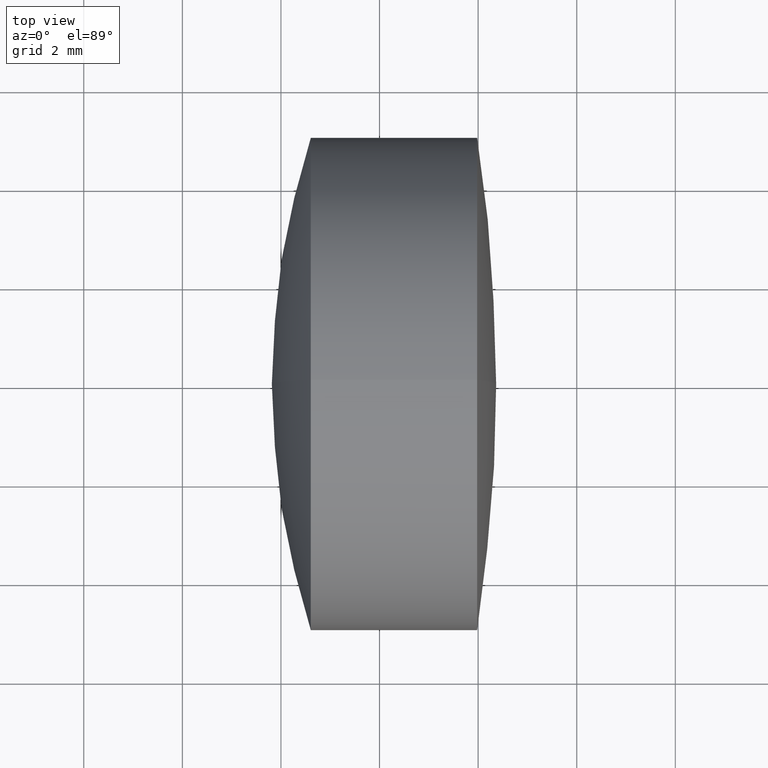
[diagram: clean part render]
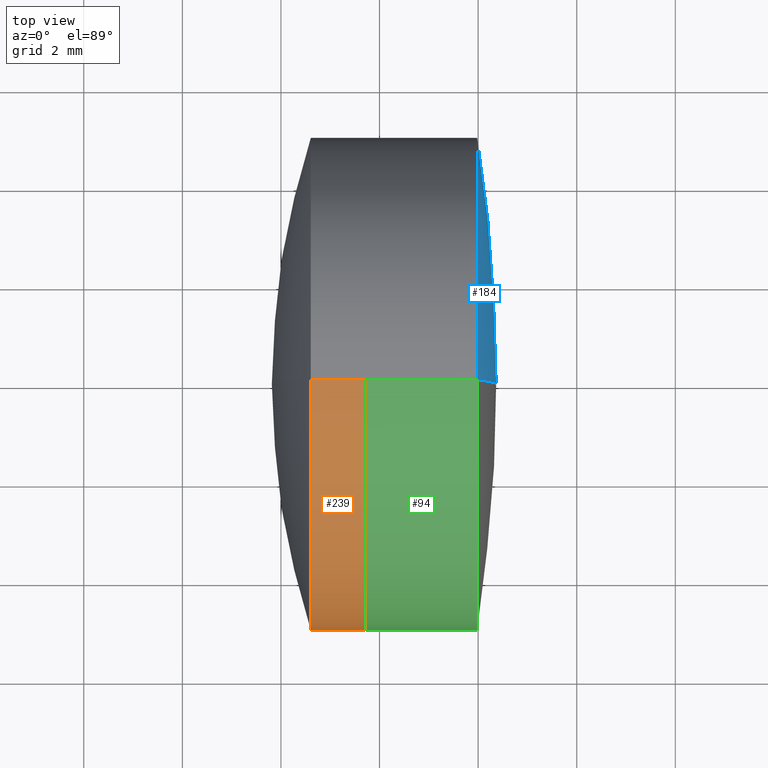
[diagram: same view with three faces highlighted in distinct colors, each labeled with its STEP entity id]
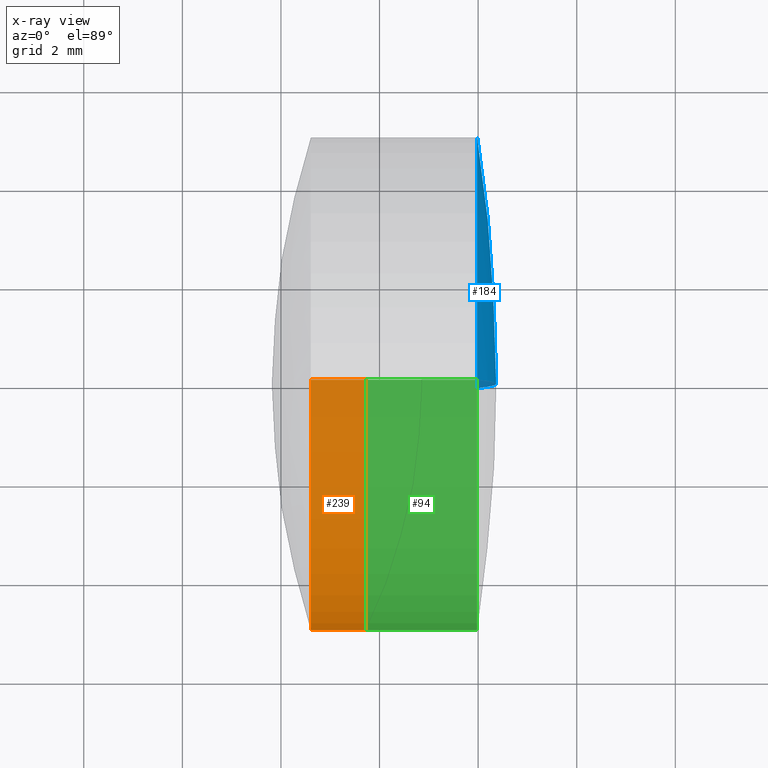
[diagram: x-ray of the same camera — body ghosted, the three highlighted faces saturated]
A machine part, top view with three faces highlighted in distinct colors.
The next image is the same camera in x-ray (body ghosted, the three faces saturated) — at least one of them is partly hidden behind the body in this view.
Their STEP definitions:

[orange] entity #239 — the highlighted cylindrical surface (partial cylindrical patch) has radius 5 mm, axis along (-1, -0, -0).
#3 = CARTESIAN_POINT ( 'NONE',  ( 2.605354894896700900, 0.0000000000000000000, 0.0000000000000000000 ) ) ;
#5 = CARTESIAN_POINT ( 'NONE',  ( 2.605354894896702700, 0.0000000000000000000, 5.000000000000002700 ) ) ;
#6 = DIRECTION ( 'NONE',  ( -1.000000000000000000, -0.0000000000000000000, -0.0000000000000000000 ) ) ;
#14 = VECTOR ( 'NONE', #209, 1000.000000000000000 ) ;
#57 = AXIS2_PLACEMENT_3D ( 'NONE', #210, #192, #303 ) ;
#59 = VERTEX_POINT ( 'NONE', #5 ) ;
#69 = AXIS2_PLACEMENT_3D ( 'NONE', #3, #6, #301 ) ;
#87 = ORIENTED_EDGE ( 'NONE', *, *, #141, .T. ) ;
#88 = CARTESIAN_POINT ( 'NONE',  ( -9.702612178336682500, 0.0000000000000000000, 5.000000000000000000 ) ) ;
#110 = ORIENTED_EDGE ( 'NONE', *, *, #116, .F. ) ;
#116 = EDGE_CURVE ( 'NONE', #318, #59, #127, .T. ) ;
#117 = DIRECTION ( 'NONE',  ( -1.000000000000000000, -0.0000000000000000000, -0.0000000000000000000 ) ) ;
#118 = ORIENTED_EDGE ( 'NONE', *, *, #213, .F. ) ;
#127 = CIRCLE ( 'NONE', #69, 5.000000000000000000 ) ;
#130 = CARTESIAN_POINT ( 'NONE',  ( -9.702612178336682500, 0.0000000000000000000, 0.0000000000000000000 ) ) ;
#141 = EDGE_CURVE ( 'NONE', #243, #305, #181, .T. ) ;
#148 = FACE_OUTER_BOUND ( 'NONE', #342, .T. ) ;
#154 = LINE ( 'NONE', #177, #275 ) ;
#159 = LINE ( 'NONE', #88, #14 ) ;
#177 = CARTESIAN_POINT ( 'NONE',  ( -9.702612178336682500, 6.123233995736766300E-016, -5.000000000000000000 ) ) ;
#181 = CIRCLE ( 'NONE', #57, 5.000000000000000000 ) ;
#182 = CARTESIAN_POINT ( 'NONE',  ( 2.605354894896702700, 6.123233995736769200E-016, -5.000000000000002700 ) ) ;
#192 = DIRECTION ( 'NONE',  ( -1.000000000000000000, -0.0000000000000000000, -0.0000000000000000000 ) ) ;
#195 = EDGE_CURVE ( 'NONE', #305, #59, #159, .T. ) ;
#209 = DIRECTION ( 'NONE',  ( -1.000000000000000000, -0.0000000000000000000, -0.0000000000000000000 ) ) ;
#210 = CARTESIAN_POINT ( 'NONE',  ( 3.722280238489432700, 0.0000000000000000000, 0.0000000000000000000 ) ) ;
#213 = EDGE_CURVE ( 'NONE', #243, #318, #154, .T. ) ;
#215 = DIRECTION ( 'NONE',  ( -1.000000000000000000, -0.0000000000000000000, -0.0000000000000000000 ) ) ;
#239 = ADVANCED_FACE ( 'NONE', ( #148 ), #281, .T. ) ;
#243 = VERTEX_POINT ( 'NONE', #330 ) ;
#271 = DIRECTION ( 'NONE',  ( 0.0000000000000000000, 0.0000000000000000000, 1.000000000000000000 ) ) ;
#275 = VECTOR ( 'NONE', #117, 1000.000000000000000 ) ;
#281 = CYLINDRICAL_SURFACE ( 'NONE', #299, 5.000000000000000000 ) ;
#297 = ORIENTED_EDGE ( 'NONE', *, *, #195, .T. ) ;
#299 = AXIS2_PLACEMENT_3D ( 'NONE', #130, #215, #271 ) ;
#301 = DIRECTION ( 'NONE',  ( 0.0000000000000000000, 0.0000000000000000000, 1.000000000000000000 ) ) ;
#303 = DIRECTION ( 'NONE',  ( 0.0000000000000000000, 0.0000000000000000000, 1.000000000000000000 ) ) ;
#305 = VERTEX_POINT ( 'NONE', #323 ) ;
#318 = VERTEX_POINT ( 'NONE', #182 ) ;
#323 = CARTESIAN_POINT ( 'NONE',  ( 3.722280238489432700, 0.0000000000000000000, 5.000000000000000000 ) ) ;
#330 = CARTESIAN_POINT ( 'NONE',  ( 3.722280238489432700, 6.123233995736766300E-016, -5.000000000000000000 ) ) ;
#342 = EDGE_LOOP ( 'NONE', ( #118, #87, #297, #110 ) ) ;

[blue] entity #184 — the highlighted spherical surface has radius 32.651 mm.
#9 = AXIS2_PLACEMENT_3D ( 'NONE', #255, #104, #235 ) ;
#16 = DIRECTION ( 'NONE',  ( 0.0000000000000000000, 1.000000000000000000, 0.0000000000000000000 ) ) ;
#19 = VERTEX_POINT ( 'NONE', #77 ) ;
#20 = VERTEX_POINT ( 'NONE', #62 ) ;
#48 = AXIS2_PLACEMENT_3D ( 'NONE', #256, #307, #329 ) ;
#62 = CARTESIAN_POINT ( 'NONE',  ( 5.980462902601981800, 6.123233995736762300E-016, -4.999999999999995600 ) ) ;
#65 = EDGE_CURVE ( 'NONE', #157, #19, #96, .T. ) ;
#77 = CARTESIAN_POINT ( 'NONE',  ( 5.980462902601981800, 0.0000000000000000000, 4.999999999999995600 ) ) ;
#86 = ORIENTED_EDGE ( 'NONE', *, *, #308, .T. ) ;
#89 = CIRCLE ( 'NONE', #252, 32.65100000000000300 ) ;
#96 = CIRCLE ( 'NONE', #48, 32.65100000000000300 ) ;
#104 = DIRECTION ( 'NONE',  ( -1.000000000000000000, -0.0000000000000000000, -0.0000000000000000000 ) ) ;
#119 = CARTESIAN_POINT ( 'NONE',  ( 6.365570678769087100, 0.0000000000000000000, 1.999297131948011600E-015 ) ) ;
#140 = CARTESIAN_POINT ( 'NONE',  ( -26.28542932123091800, 0.0000000000000000000, 0.0000000000000000000 ) ) ;
#143 = DIRECTION ( 'NONE',  ( -0.0000000000000000000, 1.000000000000000000, 1.224646799147353200E-016 ) ) ;
#157 = VERTEX_POINT ( 'NONE', #119 ) ;
#161 = EDGE_CURVE ( 'NONE', #19, #20, #286, .T. ) ;
#171 = AXIS2_PLACEMENT_3D ( 'NONE', #140, #16, #311 ) ;
#184 = ADVANCED_FACE ( 'NONE', ( #238 ), #260, .T. ) ;
#194 = ORIENTED_EDGE ( 'NONE', *, *, #161, .F. ) ;
#235 = DIRECTION ( 'NONE',  ( 0.0000000000000000000, 0.0000000000000000000, 1.000000000000000000 ) ) ;
#238 = FACE_OUTER_BOUND ( 'NONE', #264, .T. ) ;
#252 = AXIS2_PLACEMENT_3D ( 'NONE', #320, #143, #302 ) ;
#255 = CARTESIAN_POINT ( 'NONE',  ( 5.980462902601981800, 0.0000000000000000000, 0.0000000000000000000 ) ) ;
#256 = CARTESIAN_POINT ( 'NONE',  ( -26.28542932123091800, 0.0000000000000000000, 0.0000000000000000000 ) ) ;
#260 = SPHERICAL_SURFACE ( 'NONE', #171, 32.65100000000000300 ) ;
#264 = EDGE_LOOP ( 'NONE', ( #321, #86, #194 ) ) ;
#286 = CIRCLE ( 'NONE', #9, 4.999999999999995600 ) ;
#302 = DIRECTION ( 'NONE',  ( 0.0000000000000000000, -1.224646799147353200E-016, 1.000000000000000000 ) ) ;
#307 = DIRECTION ( 'NONE',  ( 0.0000000000000000000, -1.000000000000000000, 0.0000000000000000000 ) ) ;
#308 = EDGE_CURVE ( 'NONE', #157, #20, #89, .T. ) ;
#311 = DIRECTION ( 'NONE',  ( 0.0000000000000000000, 0.0000000000000000000, 1.000000000000000000 ) ) ;
#320 = CARTESIAN_POINT ( 'NONE',  ( -26.28542932123091800, 0.0000000000000000000, 0.0000000000000000000 ) ) ;
#321 = ORIENTED_EDGE ( 'NONE', *, *, #65, .F. ) ;
#329 = DIRECTION ( 'NONE',  ( 0.0000000000000000000, 0.0000000000000000000, -1.000000000000000000 ) ) ;

[green] entity #94 — the highlighted cylindrical surface (partial cylindrical patch) has radius 5 mm, axis along (-1, -0, -0).
#19 = VERTEX_POINT ( 'NONE', #77 ) ;
#20 = VERTEX_POINT ( 'NONE', #62 ) ;
#29 = VERTEX_POINT ( 'NONE', #115 ) ;
#38 = DIRECTION ( 'NONE',  ( -1.000000000000000000, -0.0000000000000000000, -0.0000000000000000000 ) ) ;
#42 = EDGE_CURVE ( 'NONE', #20, #29, #309, .T. ) ;
#52 = EDGE_LOOP ( 'NONE', ( #202, #90, #258, #111 ) ) ;
#56 = VECTOR ( 'NONE', #60, 1000.000000000000000 ) ;
#60 = DIRECTION ( 'NONE',  ( -1.000000000000000000, -0.0000000000000000000, -0.0000000000000000000 ) ) ;
#62 = CARTESIAN_POINT ( 'NONE',  ( 5.980462902601981800, 6.123233995736762300E-016, -4.999999999999995600 ) ) ;
#68 = DIRECTION ( 'NONE',  ( -1.000000000000000000, -0.0000000000000000000, -0.0000000000000000000 ) ) ;
#77 = CARTESIAN_POINT ( 'NONE',  ( 5.980462902601981800, 0.0000000000000000000, 4.999999999999995600 ) ) ;
#81 = EDGE_CURVE ( 'NONE', #19, #347, #106, .T. ) ;
#90 = ORIENTED_EDGE ( 'NONE', *, *, #234, .T. ) ;
#93 = DIRECTION ( 'NONE',  ( 0.0000000000000000000, 0.0000000000000000000, 1.000000000000000000 ) ) ;
#94 = ADVANCED_FACE ( 'NONE', ( #326 ), #268, .T. ) ;
#98 = DIRECTION ( 'NONE',  ( 0.0000000000000000000, 0.0000000000000000000, 1.000000000000000000 ) ) ;
#106 = LINE ( 'NONE', #132, #158 ) ;
#111 = ORIENTED_EDGE ( 'NONE', *, *, #121, .F. ) ;
#113 = AXIS2_PLACEMENT_3D ( 'NONE', #180, #38, #98 ) ;
#115 = CARTESIAN_POINT ( 'NONE',  ( 3.722280238489434500, 6.123233995736763300E-016, -4.999999999999997300 ) ) ;
#121 = EDGE_CURVE ( 'NONE', #29, #347, #279, .T. ) ;
#132 = CARTESIAN_POINT ( 'NONE',  ( -0.5519199926577972300, 0.0000000000000000000, 4.999999999999997300 ) ) ;
#151 = DIRECTION ( 'NONE',  ( -1.000000000000000000, -0.0000000000000000000, -0.0000000000000000000 ) ) ;
#158 = VECTOR ( 'NONE', #151, 1000.000000000000000 ) ;
#180 = CARTESIAN_POINT ( 'NONE',  ( 5.980462902601981800, 0.0000000000000000000, 0.0000000000000000000 ) ) ;
#199 = DIRECTION ( 'NONE',  ( 0.0000000000000000000, 0.0000000000000000000, 1.000000000000000000 ) ) ;
#202 = ORIENTED_EDGE ( 'NONE', *, *, #42, .F. ) ;
#203 = CARTESIAN_POINT ( 'NONE',  ( 3.722280238489433100, 0.0000000000000000000, 0.0000000000000000000 ) ) ;
#218 = DIRECTION ( 'NONE',  ( -1.000000000000000000, -0.0000000000000000000, -0.0000000000000000000 ) ) ;
#220 = AXIS2_PLACEMENT_3D ( 'NONE', #203, #68, #93 ) ;
#223 = CARTESIAN_POINT ( 'NONE',  ( 3.722280238489434500, 0.0000000000000000000, 4.999999999999997300 ) ) ;
#228 = CARTESIAN_POINT ( 'NONE',  ( -0.5519199926577972300, 0.0000000000000000000, 0.0000000000000000000 ) ) ;
#234 = EDGE_CURVE ( 'NONE', #20, #19, #266, .T. ) ;
#258 = ORIENTED_EDGE ( 'NONE', *, *, #81, .T. ) ;
#263 = AXIS2_PLACEMENT_3D ( 'NONE', #228, #218, #199 ) ;
#266 = CIRCLE ( 'NONE', #113, 4.999999999999995600 ) ;
#268 = CYLINDRICAL_SURFACE ( 'NONE', #263, 4.999999999999997300 ) ;
#279 = CIRCLE ( 'NONE', #220, 4.999999999999999100 ) ;
#309 = LINE ( 'NONE', #328, #56 ) ;
#326 = FACE_OUTER_BOUND ( 'NONE', #52, .T. ) ;
#328 = CARTESIAN_POINT ( 'NONE',  ( -0.5519199926577972300, 6.123233995736763300E-016, -4.999999999999997300 ) ) ;
#347 = VERTEX_POINT ( 'NONE', #223 ) ;